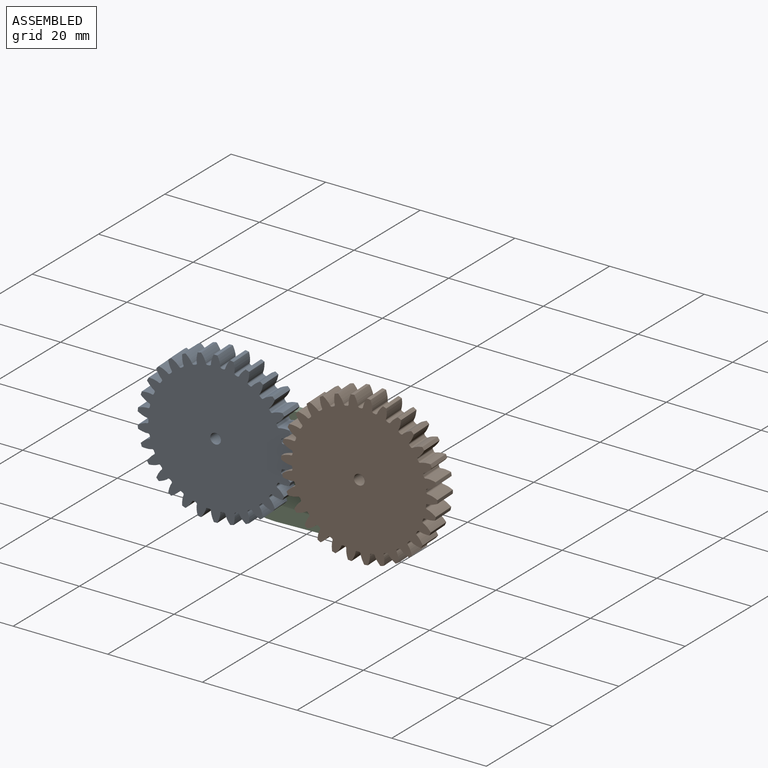
[diagram: assembled view]
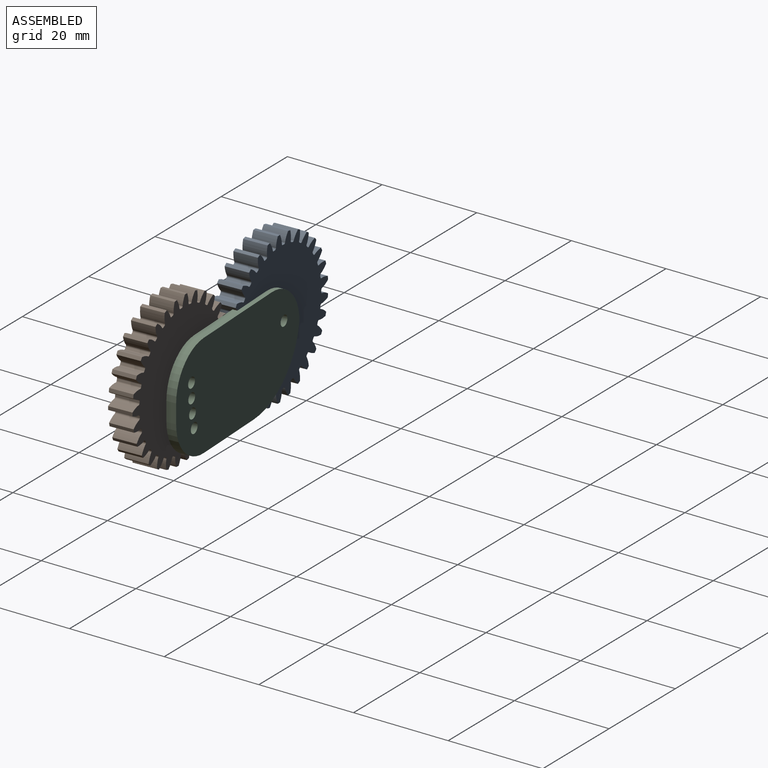
[diagram: assembled view, second angle]
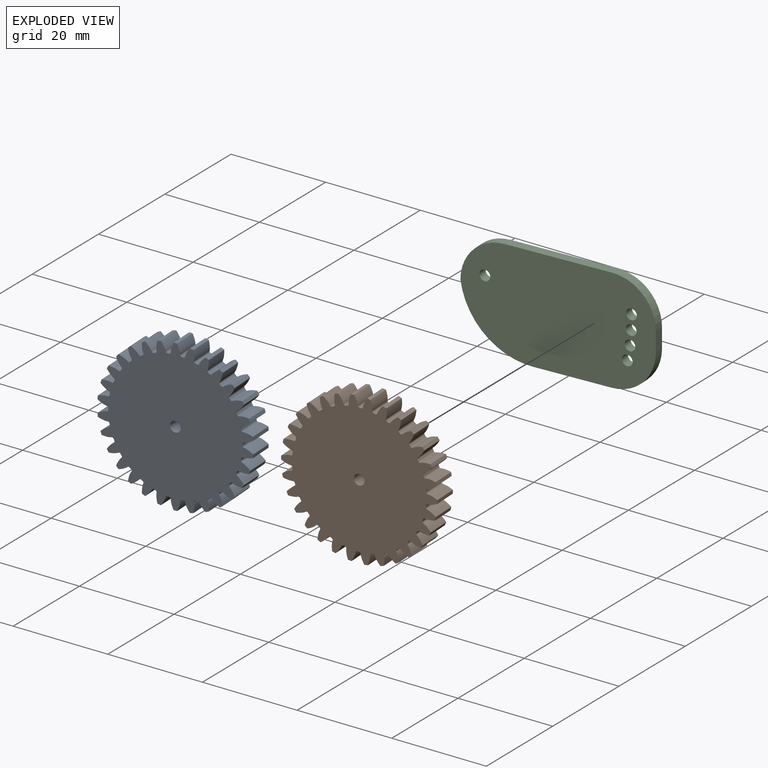
[diagram: exploded view]
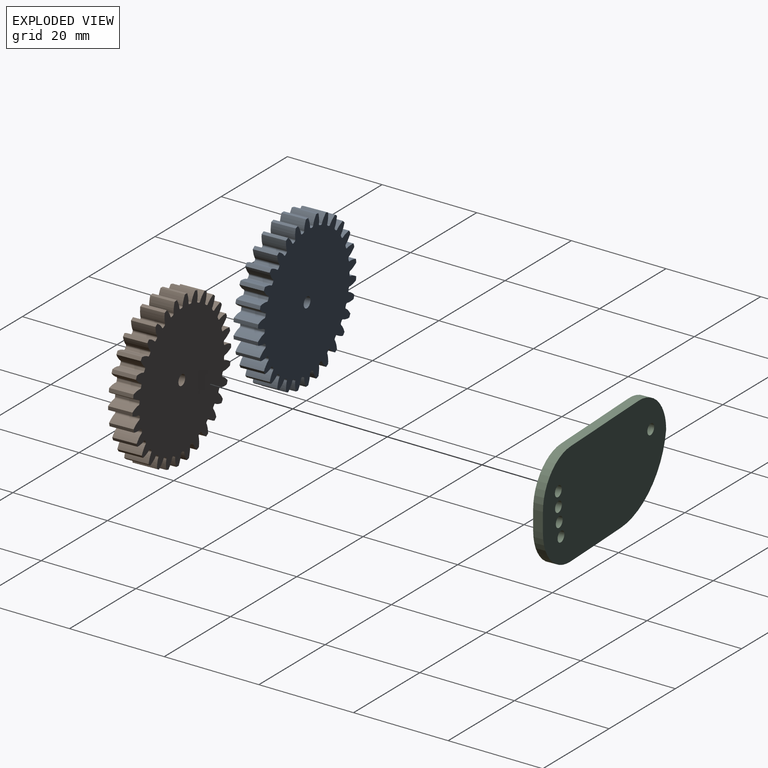
[diagram: exploded view, second angle]
ASSEMBLY  parts=3 mates=2
PART A: 183 faces, bbox 31.9x5x32 mm
  f0: extruded ~5x1.87mm, area 10.2mm2, adj f119,f120,f121,f122
  f1: cylinder r=13.75mm len=5mm, axis (0,1,0), area 1.8mm2, adj f120,f121,f122,f123
  f2: extruded ~5x1.87mm, area 10.2mm2, adj f3,f120,f121,f123
  f3: cylinder r=16mm len=5mm, axis (0,1,0), area 3.7mm2, adj f2,f4,f120,f121
  f4: extruded ~5x1.99mm, area 10.2mm2, adj f3,f120,f121,f124
  f5: cylinder r=13.75mm len=5mm, axis (0,1,0), area 1.8mm2, adj f120,f121,f124,f125
  f6: extruded ~5x1.67mm, area 10.2mm2, adj f7,f120,f121,f125
  f7: cylinder r=16mm len=5mm, axis (0,1,0), area 3.7mm2, adj f6,f8,f120,f121
  f8: extruded ~5x2.03mm, area 10.2mm2, adj f7,f120,f121,f126
  f9: cylinder r=13.75mm len=5mm, axis (0,1,0), area 1.8mm2, adj f120,f121,f126,f127
  f10: extruded ~5x1.47mm, area 10.2mm2, adj f11,f120,f121,f127
  f11: cylinder r=16mm len=5mm, axis (0,1,0), area 3.7mm2, adj f10,f12,f120,f121
  f12: extruded ~5x1.97mm, area 10.2mm2, adj f11,f120,f121,f128
  f13: cylinder r=13.75mm len=5mm, axis (0,1,0), area 1.8mm2, adj f120,f121,f128,f129
  f14: extruded ~5x1.73mm, area 10.2mm2, adj f15,f120,f121,f129
  f15: cylinder r=16mm len=5mm, axis (0,1,0), area 3.7mm2, adj f14,f16,f120,f121
  f16: extruded ~5x1.83mm, area 10.2mm2, adj f15,f120,f121,f130
  f17: cylinder r=13.75mm len=5mm, axis (0,1,0), area 1.8mm2, adj f120,f121,f130,f131
  f18: extruded ~5x1.91mm, area 10.2mm2, adj f19,f120,f121,f131
  f19: cylinder r=16mm len=5mm, axis (0,1,0), area 3.7mm2, adj f18,f20,f120,f121
  f20: extruded ~5x1.61mm, area 10.2mm2, adj f19,f120,f121,f132
  f21: cylinder r=13.75mm len=5mm, axis (0,1,0), area 1.8mm2, adj f120,f121,f132,f133
  f22: extruded ~5x2.01mm, area 10.2mm2, adj f23,f120,f121,f133
  f23: cylinder r=16mm len=5mm, axis (0,1,0), area 3.7mm2, adj f22,f24,f120,f121
  f24: extruded ~5x1.54mm, area 10.2mm2, adj f23,f120,f121,f134
  f25: cylinder r=13.75mm len=5mm, axis (0,1,0), area 1.8mm2, adj f120,f121,f134,f135
  f26: extruded ~5x2.02mm, area 10.2mm2, adj f27,f120,f121,f135
  f27: cylinder r=16mm len=5mm, axis (0,1,0), area 3.7mm2, adj f26,f28,f120,f121
  f28: extruded ~5x1.78mm, area 10.2mm2, adj f27,f120,f121,f136
  f29: cylinder r=13.75mm len=5mm, axis (0,1,0), area 1.8mm2, adj f120,f121,f136,f137
  f30: extruded ~5x1.94mm, area 10.2mm2, adj f31,f120,f121,f137
  f31: cylinder r=16mm len=5mm, axis (0,1,0), area 3.7mm2, adj f30,f32,f120,f121
  f32: extruded ~5x1.94mm, area 10.2mm2, adj f31,f120,f121,f138
  f33: cylinder r=13.75mm len=5mm, axis (0,1,0), area 1.8mm2, adj f120,f121,f138,f139
  f34: extruded ~5x1.78mm, area 10.2mm2, adj f35,f120,f121,f139
  f35: cylinder r=16mm len=5mm, axis (0,1,0), area 3.7mm2, adj f34,f36,f120,f121
  f36: extruded ~5x2.02mm, area 10.2mm2, adj f35,f120,f121,f140
  f37: cylinder r=13.75mm len=5mm, axis (0,1,0), area 1.8mm2, adj f120,f121,f140,f141
  f38: extruded ~5x1.54mm, area 10.2mm2, adj f39,f120,f121,f141
  f39: cylinder r=16mm len=5mm, axis (0,1,0), area 3.7mm2, adj f38,f40,f120,f121
  f40: extruded ~5x2.01mm, area 10.2mm2, adj f39,f120,f121,f142
  f41: cylinder r=13.75mm len=5mm, axis (0,1,0), area 1.8mm2, adj f120,f121,f142,f143
  f42: extruded ~5x1.61mm, area 10.2mm2, adj f43,f120,f121,f143
  f43: cylinder r=16mm len=5mm, axis (0,1,0), area 3.7mm2, adj f42,f44,f120,f121
  f44: extruded ~5x1.91mm, area 10.2mm2, adj f43,f120,f121,f144
  f45: cylinder r=13.75mm len=5mm, axis (0,1,0), area 1.8mm2, adj f120,f121,f144,f145
  f46: extruded ~5x1.83mm, area 10.2mm2, adj f47,f120,f121,f145
  f47: cylinder r=16mm len=5mm, axis (0,1,0), area 3.7mm2, adj f46,f48,f120,f121
  f48: extruded ~5x1.73mm, area 10.2mm2, adj f47,f120,f121,f146
  f49: cylinder r=13.75mm len=5mm, axis (0,1,0), area 1.8mm2, adj f120,f121,f146,f147
  f50: extruded ~5x1.97mm, area 10.2mm2, adj f51,f120,f121,f147
  f51: cylinder r=16mm len=5mm, axis (0,1,0), area 3.7mm2, adj f50,f52,f120,f121
  f52: extruded ~5x1.47mm, area 10.2mm2, adj f51,f120,f121,f148
  f53: cylinder r=13.75mm len=5mm, axis (0,1,0), area 1.8mm2, adj f120,f121,f148,f149
  f54: extruded ~5x2.03mm, area 10.2mm2, adj f55,f120,f121,f149
  f55: cylinder r=16mm len=5mm, axis (0,1,0), area 3.7mm2, adj f54,f56,f120,f121
  f56: extruded ~5x1.67mm, area 10.2mm2, adj f55,f120,f121,f150
  f57: cylinder r=13.75mm len=5mm, axis (0,1,0), area 1.8mm2, adj f120,f121,f150,f151
  f58: extruded ~5x1.99mm, area 10.2mm2, adj f59,f120,f121,f151
  f59: cylinder r=16mm len=5mm, axis (0,1,0), area 3.7mm2, adj f58,f60,f120,f121
  f60: extruded ~5x1.87mm, area 10.2mm2, adj f59,f120,f121,f152
  f61: cylinder r=13.75mm len=5mm, axis (0,1,0), area 1.8mm2, adj f120,f121,f152,f153
  f62: extruded ~5x1.87mm, area 10.2mm2, adj f63,f120,f121,f153
  f63: cylinder r=16mm len=5mm, axis (0,1,0), area 3.7mm2, adj f62,f64,f120,f121
  f64: extruded ~5x1.99mm, area 10.2mm2, adj f63,f120,f121,f154
  f65: cylinder r=13.75mm len=5mm, axis (0,1,0), area 1.8mm2, adj f120,f121,f154,f155
  f66: extruded ~5x1.67mm, area 10.2mm2, adj f67,f120,f121,f155
  f67: cylinder r=16mm len=5mm, axis (0,1,0), area 3.7mm2, adj f66,f68,f120,f121
  f68: extruded ~5x2.03mm, area 10.2mm2, adj f67,f120,f121,f156
  f69: cylinder r=13.75mm len=5mm, axis (0,1,0), area 1.8mm2, adj f120,f121,f156,f157
  f70: extruded ~5x1.47mm, area 10.2mm2, adj f71,f120,f121,f157
  f71: cylinder r=16mm len=5mm, axis (0,1,0), area 3.7mm2, adj f70,f72,f120,f121
  f72: extruded ~5x1.97mm, area 10.2mm2, adj f71,f120,f121,f158
  f73: cylinder r=13.75mm len=5mm, axis (0,1,0), area 1.8mm2, adj f120,f121,f158,f159
  f74: extruded ~5x1.73mm, area 10.2mm2, adj f75,f120,f121,f159
  f75: cylinder r=16mm len=5mm, axis (0,1,0), area 3.7mm2, adj f74,f76,f120,f121
  f76: extruded ~5x1.83mm, area 10.2mm2, adj f75,f120,f121,f160
  f77: cylinder r=13.75mm len=5mm, axis (0,1,0), area 1.8mm2, adj f120,f121,f160,f161
  f78: extruded ~5x1.91mm, area 10.2mm2, adj f79,f120,f121,f161
  f79: cylinder r=16mm len=5mm, axis (0,1,0), area 3.7mm2, adj f78,f80,f120,f121
  f80: extruded ~5x1.61mm, area 10.2mm2, adj f79,f120,f121,f162
  f81: cylinder r=13.75mm len=5mm, axis (0,1,0), area 1.8mm2, adj f120,f121,f162,f163
  f82: extruded ~5x2.01mm, area 10.2mm2, adj f83,f120,f121,f163
  f83: cylinder r=16mm len=5mm, axis (0,1,0), area 3.7mm2, adj f82,f84,f120,f121
  f84: extruded ~5x1.54mm, area 10.2mm2, adj f83,f120,f121,f164
  f85: cylinder r=13.75mm len=5mm, axis (0,1,0), area 1.8mm2, adj f120,f121,f164,f165
  f86: extruded ~5x2.02mm, area 10.2mm2, adj f87,f120,f121,f165
  f87: cylinder r=16mm len=5mm, axis (0,1,0), area 3.7mm2, adj f86,f88,f120,f121
  f88: extruded ~5x1.78mm, area 10.2mm2, adj f87,f120,f121,f166
  f89: cylinder r=13.75mm len=5mm, axis (0,1,0), area 1.8mm2, adj f120,f121,f166,f167
  f90: extruded ~5x1.94mm, area 10.2mm2, adj f91,f120,f121,f167
  f91: cylinder r=16mm len=5mm, axis (0,1,0), area 3.7mm2, adj f90,f92,f120,f121
  f92: extruded ~5x1.94mm, area 10.2mm2, adj f91,f120,f121,f168
  f93: cylinder r=13.75mm len=5mm, axis (0,1,0), area 1.8mm2, adj f120,f121,f168,f169
  f94: extruded ~5x1.78mm, area 10.2mm2, adj f95,f120,f121,f169
  f95: cylinder r=16mm len=5mm, axis (0,1,0), area 3.7mm2, adj f94,f96,f120,f121
  f96: extruded ~5x2.02mm, area 10.2mm2, adj f95,f120,f121,f170
  f97: cylinder r=13.75mm len=5mm, axis (0,1,0), area 1.8mm2, adj f120,f121,f170,f171
  f98: extruded ~5x1.54mm, area 10.2mm2, adj f99,f120,f121,f171
  f99: cylinder r=16mm len=5mm, axis (0,1,0), area 3.7mm2, adj f98,f100,f120,f121
  f100: extruded ~5x2.01mm, area 10.2mm2, adj f99,f120,f121,f172
  f101: cylinder r=13.75mm len=5mm, axis (0,1,0), area 1.8mm2, adj f120,f121,f172,f173
  f102: extruded ~5x1.61mm, area 10.2mm2, adj f103,f120,f121,f173
  f103: cylinder r=16mm len=5mm, axis (0,1,0), area 3.7mm2, adj f102,f104,f120,f121
  f104: extruded ~5x1.91mm, area 10.2mm2, adj f103,f120,f121,f174
  f105: cylinder r=13.75mm len=5mm, axis (0,1,0), area 1.8mm2, adj f120,f121,f174,f175
  f106: extruded ~5x1.83mm, area 10.2mm2, adj f107,f120,f121,f175
  f107: cylinder r=16mm len=5mm, axis (0,1,0), area 3.7mm2, adj f106,f108,f120,f121
  f108: extruded ~5x1.73mm, area 10.2mm2, adj f107,f120,f121,f176
  f109: cylinder r=13.75mm len=5mm, axis (0,1,0), area 1.8mm2, adj f120,f121,f176,f177
  f110: extruded ~5x1.97mm, area 10.2mm2, adj f111,f120,f121,f177
  f111: cylinder r=16mm len=5mm, axis (0,1,0), area 3.7mm2, adj f110,f112,f120,f121
  f112: extruded ~5x1.47mm, area 10.2mm2, adj f111,f120,f121,f178
  f113: cylinder r=13.75mm len=5mm, axis (0,1,0), area 1.8mm2, adj f120,f121,f178,f179
  f114: extruded ~5x2.03mm, area 10.2mm2, adj f115,f120,f121,f179
  f115: cylinder r=16mm len=5mm, axis (0,1,0), area 3.7mm2, adj f114,f116,f120,f121
  f116: extruded ~5x1.67mm, area 10.2mm2, adj f115,f120,f121,f180
  f117: cylinder r=13.75mm len=5mm, axis (0,1,0), area 1.8mm2, adj f120,f121,f180,f181
  f118: extruded ~5x1.99mm, area 10.2mm2, adj f119,f120,f121,f181
  f119: cylinder r=16mm len=5mm, axis (0,1,0), area 3.7mm2, adj f0,f118,f120,f121
  f120: plane 32x31.9mm, normal (0,-1,0), area 695mm2, adj f0,f1,f2,f3,f4,f5,f6,f7
  f121: plane 32x31.9mm, normal (0,1,0), area 695mm2, adj f0,f1,f2,f3,f4,f5,f6,f7
  f122: cylinder r=0.34mm len=5mm, axis (0,1,0), area 2.6mm2, adj f0,f1,f120,f121
  f123: cylinder r=0.34mm len=5mm, axis (0,1,0), area 2.6mm2, adj f1,f2,f120,f121
  f124: cylinder r=0.34mm len=5mm, axis (0,1,0), area 2.6mm2, adj f4,f5,f120,f121
  f125: cylinder r=0.34mm len=5mm, axis (0,1,0), area 2.6mm2, adj f5,f6,f120,f121
  f126: cylinder r=0.34mm len=5mm, axis (0,1,0), area 2.6mm2, adj f8,f9,f120,f121
  f127: cylinder r=0.34mm len=5mm, axis (0,1,0), area 2.6mm2, adj f9,f10,f120,f121
  f128: cylinder r=0.34mm len=5mm, axis (0,1,0), area 2.6mm2, adj f12,f13,f120,f121
  f129: cylinder r=0.34mm len=5mm, axis (0,1,0), area 2.6mm2, adj f13,f14,f120,f121
  f130: cylinder r=0.34mm len=5mm, axis (0,1,0), area 2.6mm2, adj f16,f17,f120,f121
  f131: cylinder r=0.34mm len=5mm, axis (0,1,0), area 2.6mm2, adj f17,f18,f120,f121
  f132: cylinder r=0.34mm len=5mm, axis (0,1,0), area 2.6mm2, adj f20,f21,f120,f121
  f133: cylinder r=0.34mm len=5mm, axis (0,1,0), area 2.6mm2, adj f21,f22,f120,f121
  f134: cylinder r=0.34mm len=5mm, axis (0,1,0), area 2.6mm2, adj f24,f25,f120,f121
  f135: cylinder r=0.34mm len=5mm, axis (0,1,0), area 2.6mm2, adj f25,f26,f120,f121
  f136: cylinder r=0.34mm len=5mm, axis (0,1,0), area 2.6mm2, adj f28,f29,f120,f121
  f137: cylinder r=0.34mm len=5mm, axis (0,1,0), area 2.6mm2, adj f29,f30,f120,f121
  f138: cylinder r=0.34mm len=5mm, axis (0,1,0), area 2.6mm2, adj f32,f33,f120,f121
  f139: cylinder r=0.34mm len=5mm, axis (0,1,0), area 2.6mm2, adj f33,f34,f120,f121
  f140: cylinder r=0.34mm len=5mm, axis (0,1,0), area 2.6mm2, adj f36,f37,f120,f121
  f141: cylinder r=0.34mm len=5mm, axis (0,1,0), area 2.6mm2, adj f37,f38,f120,f121
  f142: cylinder r=0.34mm len=5mm, axis (0,1,0), area 2.6mm2, adj f40,f41,f120,f121
  f143: cylinder r=0.34mm len=5mm, axis (0,1,0), area 2.6mm2, adj f41,f42,f120,f121
  f144: cylinder r=0.34mm len=5mm, axis (0,1,0), area 2.6mm2, adj f44,f45,f120,f121
  f145: cylinder r=0.34mm len=5mm, axis (0,1,0), area 2.6mm2, adj f45,f46,f120,f121
  f146: cylinder r=0.34mm len=5mm, axis (0,1,0), area 2.6mm2, adj f48,f49,f120,f121
  f147: cylinder r=0.34mm len=5mm, axis (0,1,0), area 2.6mm2, adj f49,f50,f120,f121
  f148: cylinder r=0.34mm len=5mm, axis (0,1,0), area 2.6mm2, adj f52,f53,f120,f121
  f149: cylinder r=0.34mm len=5mm, axis (0,1,0), area 2.6mm2, adj f53,f54,f120,f121
  f150: cylinder r=0.34mm len=5mm, axis (0,1,0), area 2.6mm2, adj f56,f57,f120,f121
  f151: cylinder r=0.34mm len=5mm, axis (0,1,0), area 2.6mm2, adj f57,f58,f120,f121
  f152: cylinder r=0.34mm len=5mm, axis (0,1,0), area 2.6mm2, adj f60,f61,f120,f121
  f153: cylinder r=0.34mm len=5mm, axis (0,1,0), area 2.6mm2, adj f61,f62,f120,f121
  f154: cylinder r=0.34mm len=5mm, axis (0,1,0), area 2.6mm2, adj f64,f65,f120,f121
  f155: cylinder r=0.34mm len=5mm, axis (0,1,0), area 2.6mm2, adj f65,f66,f120,f121
  f156: cylinder r=0.34mm len=5mm, axis (0,1,0), area 2.6mm2, adj f68,f69,f120,f121
  f157: cylinder r=0.34mm len=5mm, axis (0,1,0), area 2.6mm2, adj f69,f70,f120,f121
  f158: cylinder r=0.34mm len=5mm, axis (0,1,0), area 2.6mm2, adj f72,f73,f120,f121
  f159: cylinder r=0.34mm len=5mm, axis (0,1,0), area 2.6mm2, adj f73,f74,f120,f121
  f160: cylinder r=0.34mm len=5mm, axis (0,1,0), area 2.6mm2, adj f76,f77,f120,f121
  f161: cylinder r=0.34mm len=5mm, axis (0,1,0), area 2.6mm2, adj f77,f78,f120,f121
  f162: cylinder r=0.34mm len=5mm, axis (0,1,0), area 2.6mm2, adj f80,f81,f120,f121
  f163: cylinder r=0.34mm len=5mm, axis (0,1,0), area 2.6mm2, adj f81,f82,f120,f121
  f164: cylinder r=0.34mm len=5mm, axis (0,1,0), area 2.6mm2, adj f84,f85,f120,f121
  f165: cylinder r=0.34mm len=5mm, axis (0,1,0), area 2.6mm2, adj f85,f86,f120,f121
  f166: cylinder r=0.34mm len=5mm, axis (0,1,0), area 2.6mm2, adj f88,f89,f120,f121
  f167: cylinder r=0.34mm len=5mm, axis (0,1,0), area 2.6mm2, adj f89,f90,f120,f121
  f168: cylinder r=0.34mm len=5mm, axis (0,1,0), area 2.6mm2, adj f92,f93,f120,f121
  f169: cylinder r=0.34mm len=5mm, axis (0,1,0), area 2.6mm2, adj f93,f94,f120,f121
  f170: cylinder r=0.34mm len=5mm, axis (0,1,0), area 2.6mm2, adj f96,f97,f120,f121
  f171: cylinder r=0.34mm len=5mm, axis (0,1,0), area 2.6mm2, adj f97,f98,f120,f121
  f172: cylinder r=0.34mm len=5mm, axis (0,1,0), area 2.6mm2, adj f100,f101,f120,f121
  f173: cylinder r=0.34mm len=5mm, axis (0,1,0), area 2.6mm2, adj f101,f102,f120,f121
  f174: cylinder r=0.34mm len=5mm, axis (0,1,0), area 2.6mm2, adj f104,f105,f120,f121
  f175: cylinder r=0.34mm len=5mm, axis (0,1,0), area 2.6mm2, adj f105,f106,f120,f121
  f176: cylinder r=0.34mm len=5mm, axis (0,1,0), area 2.6mm2, adj f108,f109,f120,f121
  f177: cylinder r=0.34mm len=5mm, axis (0,1,0), area 2.6mm2, adj f109,f110,f120,f121
  f178: cylinder r=0.34mm len=5mm, axis (0,1,0), area 2.6mm2, adj f112,f113,f120,f121
  f179: cylinder r=0.34mm len=5mm, axis (0,1,0), area 2.6mm2, adj f113,f114,f120,f121
  f180: cylinder r=0.34mm len=5mm, axis (0,1,0), area 2.6mm2, adj f116,f117,f120,f121
  f181: cylinder r=0.34mm len=5mm, axis (0,1,0), area 2.6mm2, adj f117,f118,f120,f121
  f182: cylinder r=1.1mm len=5mm, axis (0,-1,0), area 34.6mm2, adj f120,f121
PART B: same geometry as A
PART C: 14 faces, bbox 40x2x22 mm
  f0: plane 22x2mm, normal (0,0,1), area 44mm2, adj f8,f9,f10,f12
  f1: plane 16.13x2mm, normal (0,0,-1), area 32.3mm2, adj f8,f9,f11,f13
  f2: cylinder r=1.1mm len=2.2mm, axis (0,1,0), area 13.8mm2, adj f8,f9
  f3: cylinder r=1.1mm len=2.2mm, axis (0,1,0), area 13.8mm2, adj f8,f9
  f4: cylinder r=1.1mm len=2.2mm, axis (0,1,0), area 13.8mm2, adj f8,f9
  f5: cylinder r=1.1mm len=2.2mm, axis (0,1,0), area 13.8mm2, adj f8,f9
  f6: cylinder r=1.1mm len=2.2mm, axis (0,1,0), area 13.8mm2, adj f8,f9
  f7: plane 4x2mm, normal (1,0,0), area 8mm2, adj f8,f9,f11,f12
  f8: plane 40x22mm, normal (0,-1,0), area 762.4mm2, adj f0,f1,f2,f3,f4,f5,f6,f7
  f9: plane 40x22mm, normal (0,1,0), area 762.4mm2, adj f0,f1,f2,f3,f4,f5,f6,f7
  f10: cylinder r=9mm len=9mm, axis (0,-1,0), area 28.3mm2, adj f0,f8,f9,f13
  f11: cylinder r=9mm len=9mm, axis (0,-1,0), area 28.3mm2, adj f1,f7,f8,f9
  f12: cylinder r=9mm len=9mm, axis (0,1,0), area 28.3mm2, adj f0,f7,f8,f9
  f13: cylinder r=15mm len=14.87mm, axis (0,1,0), area 43.1mm2, adj f1,f8,f9,f10
PLACE A rot(axis=(1,0.02,0),180deg) t=(-14.34,-6.98,0.89)mm
PLACE B rot(axis=(-1,-0.02,-0.04),179.9deg) t=(15.67,-6.49,0.89)mm
PLACE C rot(axis=(0,0,1),2.8deg) t=(0.35,-0.22,0.89)mm
MATE revolute B.f3 <-> C.f2  axis (-0.05,1,0) through (15.43,-1.49,0.89)mm
MATE cylindrical A.f3 <-> C.f6  axis (-0.05,1,0) through (-14.59,-1.98,0.89)mm
